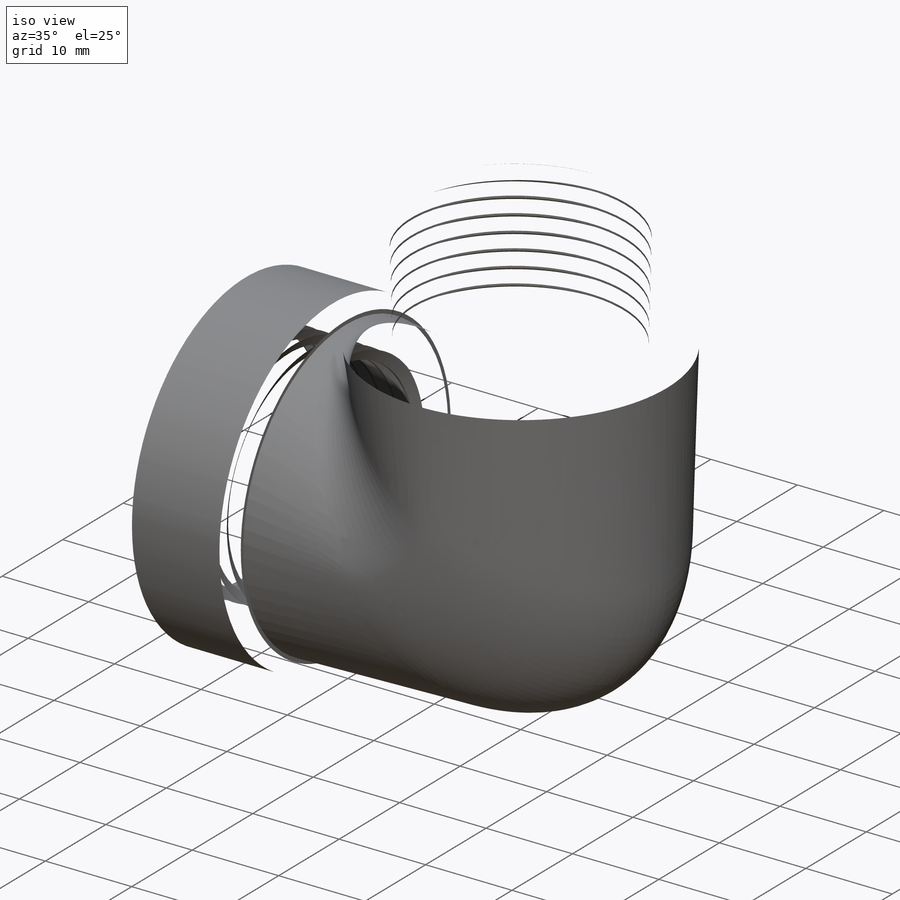
[diagram: iso view]
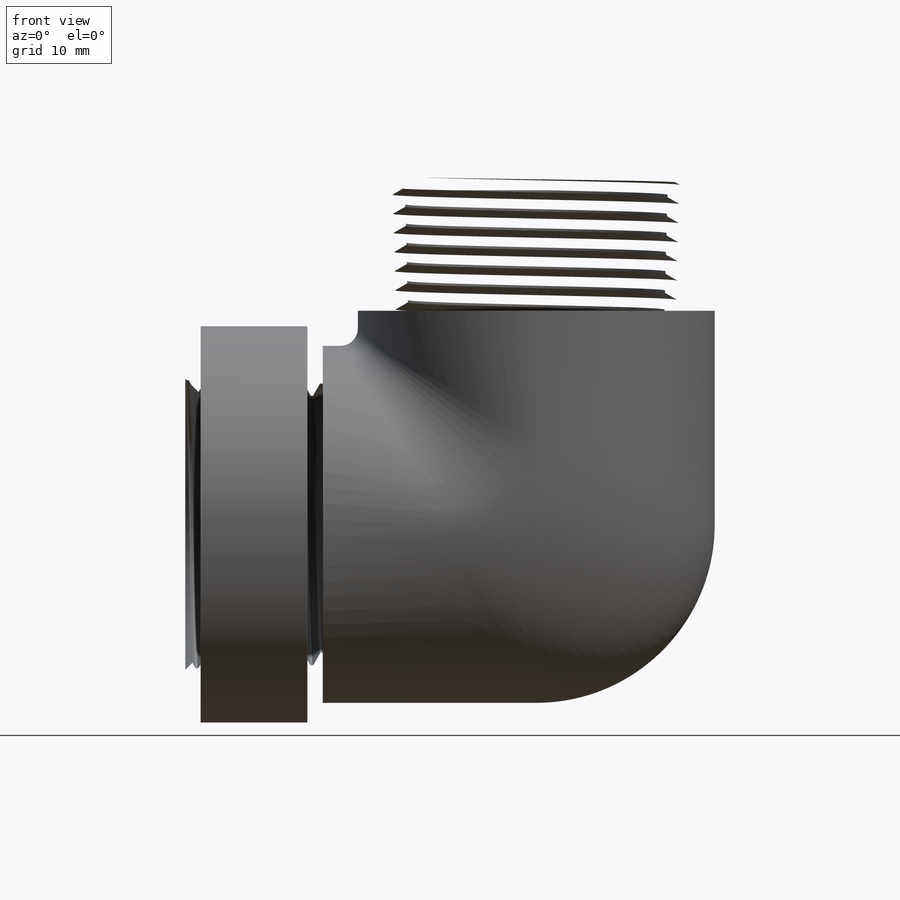
[diagram: front view]
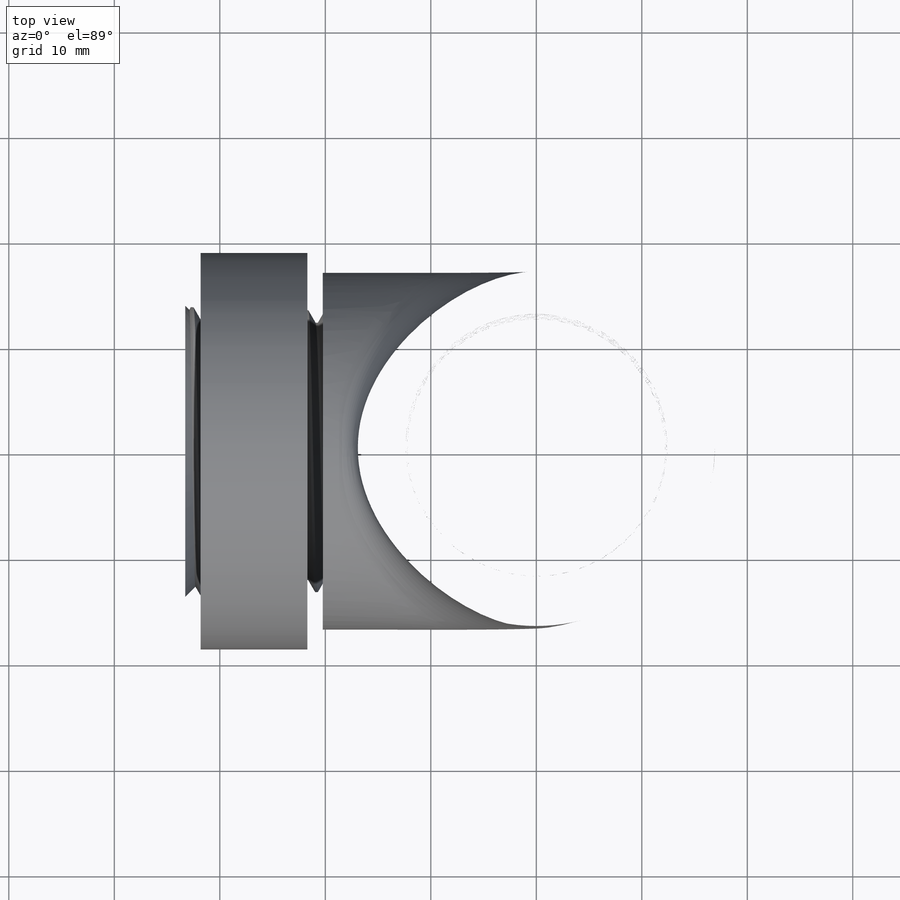
[diagram: top view]
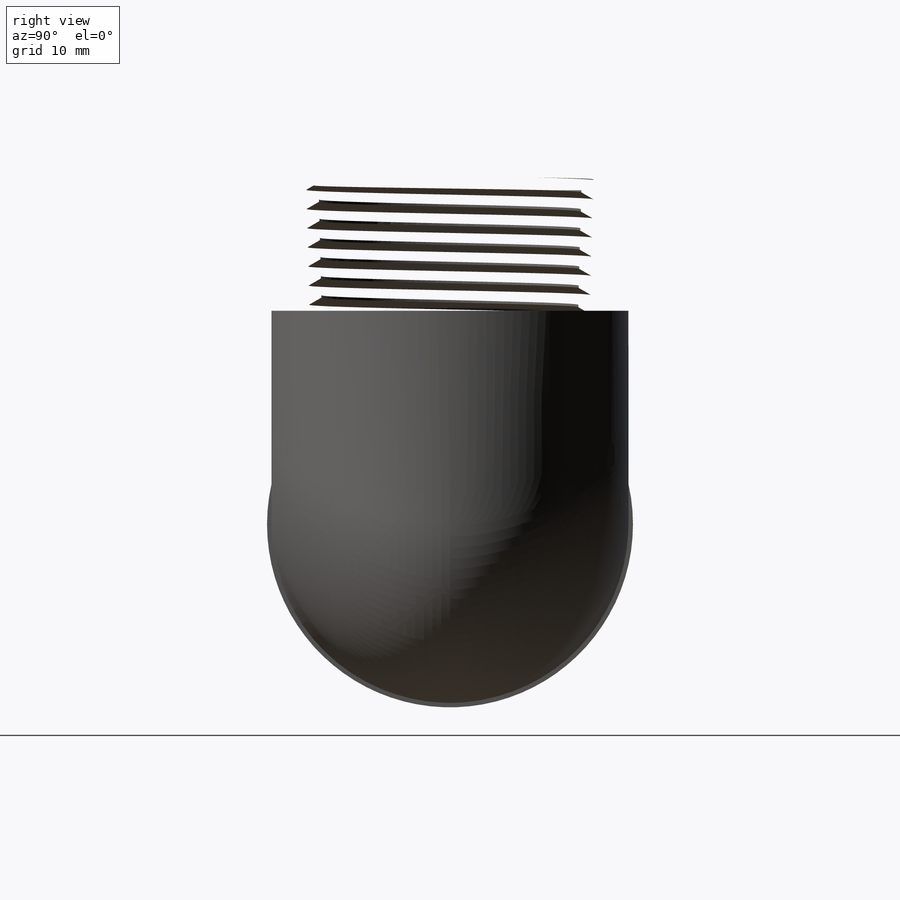
[diagram: right view]
SOLIDWORKS PART (.sldprt)
format: sldprt  version: not decoded by parser v0  size: 1,726,976 bytes
history: native  units: mm
features: sketch x27, cut_extrude x6, plane x4, extrude x3, helix x2, sweep x2, material x1, boolean_combine x1, fillet x1 (+12 scaffold rows collapsed)
feature tree (59):
  scaffold x12  (default folders/planes/origin — collapsed)
  material  "Material <not specified>"
  sketch  "Sketch1"  dims[C=33.274mm B=57.15mm Male Thread Engage=19.304mm Female thread Engagement=10.16mm D1=13.0302mm D2=33.274mm D3=13.0302mm D4=37.592mm D5=37.592mm D6=18.796mm D7=18.796mm D8=14.478mm]
  plane  "Plane1"
  plane  "Plane2"
  sketch  "Sketch27"  dims[D1=37.592mm]
  extrude  "Extrude3"  [1 undecoded]
  sketch  "Sketch2"  dims[male pipe dia=26.67mm]
  extrude  "Extrude1"  [1 undecoded]
  sketch  "Sketch28"  dims[D1=26.67mm]
  cut_extrude  "Cut-Extrude5"  [1 undecoded]
  sketch  "Sketch3"  dims[D1=0.0mm]
  helix  "Helix/Spiral1"  Pitch=17.7927mm male pitch=1.814286mm
  sketch  "Sketch29"  dims[D1=0.381mm]
  sketch  "Sketch4"  dims[c1.D1=~0.226786mm c1.D2=~0.907143mm c1.D3=~1.793636mm c2.D3=60.0deg c2.D4=~0.823148mm c3.D4=5.0deg c4.D4=~1.932609mm c5.D4=5.0deg]
  sweep  "Sweep2"
  sketch  "Sketch30"  dims[D1=0.0mm]
  cut_extrude  "Cut-Extrude6"  [1 undecoded]
  cut_extrude  "Cut-Extrude9"  [1 undecoded]
  sketch  "Sketch7"  dims[D=37.592mm]
  extrude  "Extrude2"  [1 undecoded]
  sketch  "Sketch8"  dims[D1=26.67mm]
  cut_extrude  "Cut-Extrude1"  [1 undecoded]
  sketch  "Sketch9"
  helix  "Helix/Spiral2"  Pitch=17.7927mm
  sketch  "Sketch12"  dims[D1=0.127mm]
  sketch  "Sketch10"  dims[c1.D1=~0.226786mm c1.D2=~0.907143mm c1.D3=~1.671013mm c2.D3=60.0deg c2.D4=~0.823148mm c3.D4=5.0deg]
  sweep  "Sweep1"
  sketch  "Sketch11"
  cut_extrude  "Cut-Extrude2"  [1 undecoded]
  cut_extrude  "Cut-Extrude3"  [1 undecoded]
  sketch  "Sketch13"  dims[D1=33.8328mm D2=2.032mm]
  sketch  "Sketch14"  dims[D1=33.8328mm D2=2.032mm]
  sketch  "Sketch15"
  sketch  "Sketch16"
  sketch  "Sketch17"
  sketch  "3DSketch1"  dims[D1=3.175mm]
  sketch  "3DSketch3"
  plane  "Plane3"
  sketch  "Sketch18"  dims[D1=3.175mm]
  plane  "Plane4"
  sketch  "Sketch19"  dims[D1=3.175mm]
  sketch  "Sketch23"  dims[D1=0.762mm]
  sketch  "Sketch22"  dims[D1=30.0736mm]
  sketch  "Sketch20"  dims[D1=3.175mm]
  sketch  "Sketch21"  dims[D1=3.175mm]
  boolean_combine  "Combine1"
  fillet  "Fillet2"  Radius=1.451429mm
decode coverage: 24 of 42 modeling features carry decoded parameters
note: ~ marks probable driven/reference dimensions
note: 9 parameter values undecoded
summary: no parameter record found for 9 features
note: suppression state not decoded; provenance and decode notes live in map.json
